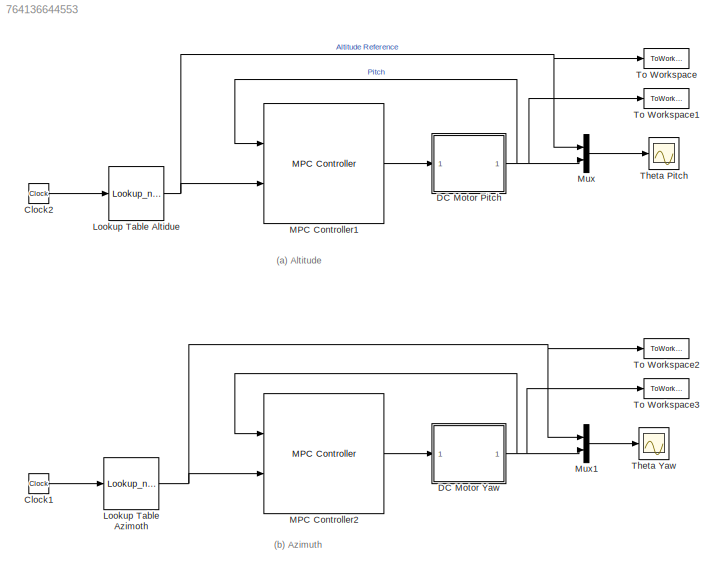
MODEL slx_764136644553
KIND model
CONFIG AbsTol = auto
CONFIG EnableMultiTasking = off
CONFIG FixedStep = 0.1
CONFIG InitFcn = clear all\nclc\n%% PARAMETERS OF DC MOTOR\nR=18.2214;\nL=0.000866;\nKb=0.030941093;\nKm=0.030941093;\nJ=0.00009;\nB1=0.000025;\n\n%% LOADING MPC\nload mpc1.mat
CONFIG MaxStep = 1.206E-17
CONFIG MinStep = 1.206E-17
CONFIG RelTol = 1e-5
CONFIG SampleTimeConstraint = Unconstrained
CONFIG SolverName = ode1be
CONFIG StartTime = 0.0
CONFIG StopTime = 121
BLOCK [Clock] Clock1
  Decimation = 1
BLOCK [Clock] Clock2
  Decimation = 1
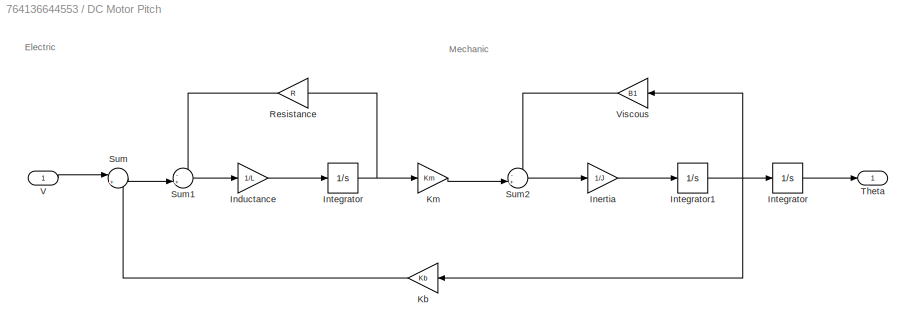
BLOCK [SubSystem] DC Motor Pitch
  Ports = [1, 1]
  RequestExecContextInheritance = off
BLOCK [Gain] DC Motor Pitch/Inductance
  Gain = 1/L
BLOCK [Gain] DC Motor Pitch/Inertia
  Gain = 1/J
BLOCK [Integrator] DC Motor Pitch/Integrator
  Ports = [1, 1]
BLOCK [Integrator] DC Motor Pitch/Integrator 
  Ports = [1, 1]
BLOCK [Integrator] DC Motor Pitch/Integrator1
  Ports = [1, 1]
BLOCK [Gain] DC Motor Pitch/Kb
  Gain = Kb
  NameLocation = top
BLOCK [Gain] DC Motor Pitch/Km
  Gain = Km
BLOCK [Gain] DC Motor Pitch/Resistance
  Gain = R
  NameLocation = top
BLOCK [Sum] DC Motor Pitch/Sum
  Inputs = |+-
  Ports = [2, 1]
BLOCK [Sum] DC Motor Pitch/Sum1
  Inputs = -+|
  Ports = [2, 1]
BLOCK [Sum] DC Motor Pitch/Sum2
  Inputs = -+|
  Ports = [2, 1]
BLOCK [Outport] DC Motor Pitch/Theta
BLOCK [Inport] DC Motor Pitch/V
BLOCK [Gain] DC Motor Pitch/Viscous
  Gain = B1
  NameLocation = top
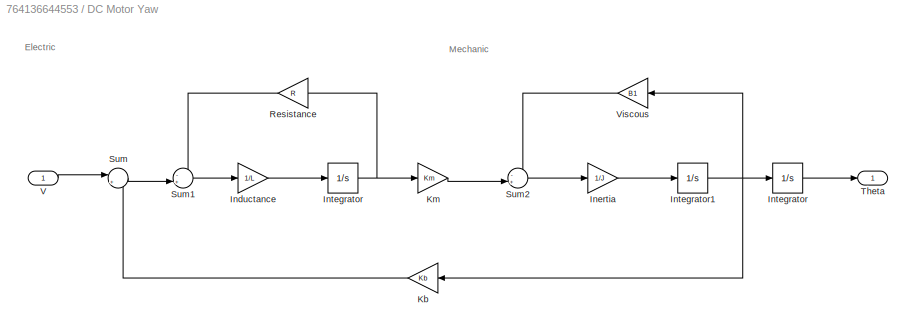
BLOCK [SubSystem] DC Motor Yaw
  Ports = [1, 1]
  RequestExecContextInheritance = off
BLOCK [Gain] DC Motor Yaw/Inductance
  Gain = 1/L
BLOCK [Gain] DC Motor Yaw/Inertia
  Gain = 1/J
BLOCK [Integrator] DC Motor Yaw/Integrator
  Ports = [1, 1]
BLOCK [Integrator] DC Motor Yaw/Integrator 
  Ports = [1, 1]
BLOCK [Integrator] DC Motor Yaw/Integrator1
  Ports = [1, 1]
BLOCK [Gain] DC Motor Yaw/Kb
  Gain = Kb
  NameLocation = top
BLOCK [Gain] DC Motor Yaw/Km
  Gain = Km
BLOCK [Gain] DC Motor Yaw/Resistance
  Gain = R
  NameLocation = top
BLOCK [Sum] DC Motor Yaw/Sum
  Inputs = |+-
  Ports = [2, 1]
BLOCK [Sum] DC Motor Yaw/Sum1
  Inputs = -+|
  Ports = [2, 1]
BLOCK [Sum] DC Motor Yaw/Sum2
  Inputs = -+|
  Ports = [2, 1]
BLOCK [Outport] DC Motor Yaw/Theta
BLOCK [Inport] DC Motor Yaw/V
BLOCK [Gain] DC Motor Yaw/Viscous
  Gain = B1
  NameLocation = top
BLOCK [Lookup_n-D] Lookup Table Altidue 
  BreakpointsForDimension1 = [1:121]
  BreakpointsForDimension1FirstPoint = 0
  BreakpointsForDimension1Spacing = 0.08264462
  InputPortMap = u0
  NumberOfTableDimensions = 1
  Ports = [1, 1]
  RndMeth = Simplest
  Table = [10.21\n11.35\n12.5\n13.64\n14.79\n15.94\n17.08\n18.23\n19.37\n20.52\n21.67\n22.81\n23.96\n25.1\n26.25\n27.39\n28.54\n29.68\n30.82\n31.96\n33.1\n34.24\n35.38\n36.51\n37.64\n38.77\n39.9\n41.03\n42.15\n43.27\n44.39\n45.5\n46.61\n47.72\n48.82\n49.92\n51.01\n52.1\n53.17\n54.25\n55.31\n56.36\n57.41\n58.44\n59.47\n60.48\n61.47\n62.45\n63.42\n64.36\n65.28\n66.18\n67.04\n67.88\n68.69\n69.45\n70.17\n70.85\n71.47\n72.03\n72.53\n72.95\n73.31\n73.58\n73.77\n73.87\n73.88\n73....<+312ch>
BLOCK [Lookup_n-D] Lookup Table Azimoth 
  BreakpointsForDimension1 = [1:121]
  BreakpointsForDimension1FirstPoint = 0
  BreakpointsForDimension1Spacing = 0.08264462
  InputPortMap = u0
  NumberOfTableDimensions = 1
  Ports = [1, 1]
  RndMeth = Simplest
  Table = [112.6\n112.53\n112.47\n112.42\n112.38\n112.35\n112.33\n112.32\n112.32\n112.34\n112.36\n112.39\n112.44\n112.5\n112.56\n112.65\n112.74\n112.85\n112.97\n113.11\n113.26\n113.43\n113.61\n113.82\n114.04\n114.28\n114.54\n114.82\n115.13\n115.45\n115.81\n116.19\n116.61\n117.05\n117.53\n118.04\n118.6\n119.19\n119.83\n120.52\n121.26\n122.06\n122.93\n123.85\n124.86\n125.94\n127.11\n128.38\n129.75\n131.23\n132.83\n134.57\n136.46\n138.5\n140.71\n143.11\n145.69\n148....<+427ch>
BLOCK [Reference] MPC Controller1  REF=mpclib/MPC Controller  (lib defined in mdl_ae329e0e0455)
  Ports = [2, 1]
  SCDEnableBlockLinearizationSpecification = on
  SourceBlock = mpclib/MPC Controller
  SourceProductBaseCode = MP
  SourceType = MPC
BLOCK [Reference] MPC Controller2  REF=mpclib/MPC Controller  (lib defined in mdl_ae329e0e0455)
  Ports = [2, 1]
  SCDEnableBlockLinearizationSpecification = on
  SourceBlock = mpclib/MPC Controller
  SourceProductBaseCode = MP
  SourceType = MPC
BLOCK [Mux] Mux
  DisplayOption = bar
  Inputs = 2
  Ports = [2, 1]
BLOCK [Mux] Mux1
  DisplayOption = bar
  Inputs = 2
  Ports = [2, 1]
BLOCK [Scope] Theta Pitch
  Floating = off
  NumInputPorts = 1
  Ports = [1]
  ScopeSpecificationString = Simulink.scopes.TimeScopeBlockCfg('CurrentConfiguration', extmgr.ConfigurationSet(extmgr.Configuration('Core','General UI',true,'FigureColor',[1 1 1]),extmgr.Configuration('Core','Source UI',true),extmgr.Configuration('Sources','WiredSimulink',true,'DataLoggingVariableName','ScopeData1','DataLoggingMaxPoints','1000','DataLoggingDecimation','1000'),extmgr.Configuration('Visuals','Time Domain',true,...<+1835ch>
BLOCK [Scope] Theta Yaw
  Floating = off
  NumInputPorts = 1
  Ports = [1]
  ScopeSpecificationString = Simulink.scopes.TimeScopeBlockCfg('CurrentConfiguration', extmgr.ConfigurationSet(extmgr.Configuration('Core','General UI',true,'FigureColor',[1 1 1]),extmgr.Configuration('Core','Source UI',true),extmgr.Configuration('Sources','WiredSimulink',true,'DataLoggingVariableName','ScopeData1'),extmgr.Configuration('Visuals','Time Domain',true,'TimeAxisLabels','None','SerializedDisplays',{struct('MinYLim...<+1724ch>
BLOCK [ToWorkspace] To Workspace
  FixptAsFi = on
  MaxDataPoints = inf
  Ports = [1]
  SampleTime = 1
  VariableName = actual1
BLOCK [ToWorkspace] To Workspace1
  FixptAsFi = on
  MaxDataPoints = inf
  Ports = [1]
  SampleTime = 1
  VariableName = model1
BLOCK [ToWorkspace] To Workspace2
  FixptAsFi = on
  MaxDataPoints = inf
  Ports = [1]
  SampleTime = 1
  VariableName = actual2
BLOCK [ToWorkspace] To Workspace3
  FixptAsFi = on
  MaxDataPoints = inf
  Ports = [1]
  SampleTime = 1
  VariableName = model2
ANNOTATION (root): (a) Altitude
ANNOTATION (root): (b) Azimuth
ANNOTATION DC Motor Pitch: Electric
ANNOTATION DC Motor Pitch: Mechanic
ANNOTATION DC Motor Yaw: Electric
ANNOTATION DC Motor Yaw: Mechanic
LINE Clock1:1 -> Lookup Table Azimoth :1
LINE Clock2:1 -> Lookup Table Altidue :1
LINE DC Motor Pitch/Inductance:1 -> DC Motor Pitch/Integrator:1
LINE DC Motor Pitch/Inertia:1 -> DC Motor Pitch/Integrator1:1
LINE DC Motor Pitch/Integrator :1 -> DC Motor Pitch/Theta:1
NET DC Motor Pitch/Integrator1:1 -> DC Motor Pitch/Integrator :1, DC Motor Pitch/Kb:1, DC Motor Pitch/Viscous:1
NET DC Motor Pitch/Integrator:1 -> DC Motor Pitch/Km:1, DC Motor Pitch/Resistance:1
LINE DC Motor Pitch/Kb:1 -> DC Motor Pitch/Sum:2
LINE DC Motor Pitch/Km:1 -> DC Motor Pitch/Sum2:2
LINE DC Motor Pitch/Resistance:1 -> DC Motor Pitch/Sum1:1
LINE DC Motor Pitch/Sum1:1 -> DC Motor Pitch/Inductance:1
LINE DC Motor Pitch/Sum2:1 -> DC Motor Pitch/Inertia:1
LINE DC Motor Pitch/Sum:1 -> DC Motor Pitch/Sum1:2
LINE DC Motor Pitch/V:1 -> DC Motor Pitch/Sum:1
LINE DC Motor Pitch/Viscous:1 -> DC Motor Pitch/Sum2:1
NET DC Motor Pitch:1 -> MPC Controller1:1, Mux:2, To Workspace1:1
LINE DC Motor Yaw/Inductance:1 -> DC Motor Yaw/Integrator:1
LINE DC Motor Yaw/Inertia:1 -> DC Motor Yaw/Integrator1:1
LINE DC Motor Yaw/Integrator :1 -> DC Motor Yaw/Theta:1
NET DC Motor Yaw/Integrator1:1 -> DC Motor Yaw/Integrator :1, DC Motor Yaw/Kb:1, DC Motor Yaw/Viscous:1
NET DC Motor Yaw/Integrator:1 -> DC Motor Yaw/Km:1, DC Motor Yaw/Resistance:1
LINE DC Motor Yaw/Kb:1 -> DC Motor Yaw/Sum:2
LINE DC Motor Yaw/Km:1 -> DC Motor Yaw/Sum2:2
LINE DC Motor Yaw/Resistance:1 -> DC Motor Yaw/Sum1:1
LINE DC Motor Yaw/Sum1:1 -> DC Motor Yaw/Inductance:1
LINE DC Motor Yaw/Sum2:1 -> DC Motor Yaw/Inertia:1
LINE DC Motor Yaw/Sum:1 -> DC Motor Yaw/Sum1:2
LINE DC Motor Yaw/V:1 -> DC Motor Yaw/Sum:1
LINE DC Motor Yaw/Viscous:1 -> DC Motor Yaw/Sum2:1
NET DC Motor Yaw:1 -> MPC Controller2:1, Mux1:2, To Workspace3:1
NET Lookup Table Altidue :1 -> MPC Controller1:2, Mux:1, To Workspace:1
NET Lookup Table Azimoth :1 -> MPC Controller2:2, Mux1:1, To Workspace2:1
LINE MPC Controller1:1 -> DC Motor Pitch:1
LINE MPC Controller2:1 -> DC Motor Yaw:1
LINE Mux1:1 -> Theta Yaw:1
LINE Mux:1 -> Theta Pitch:1
note: NET lines group one-source signal fan-out (src -> all destinations, sorted); 1:1 wires keep LINE
